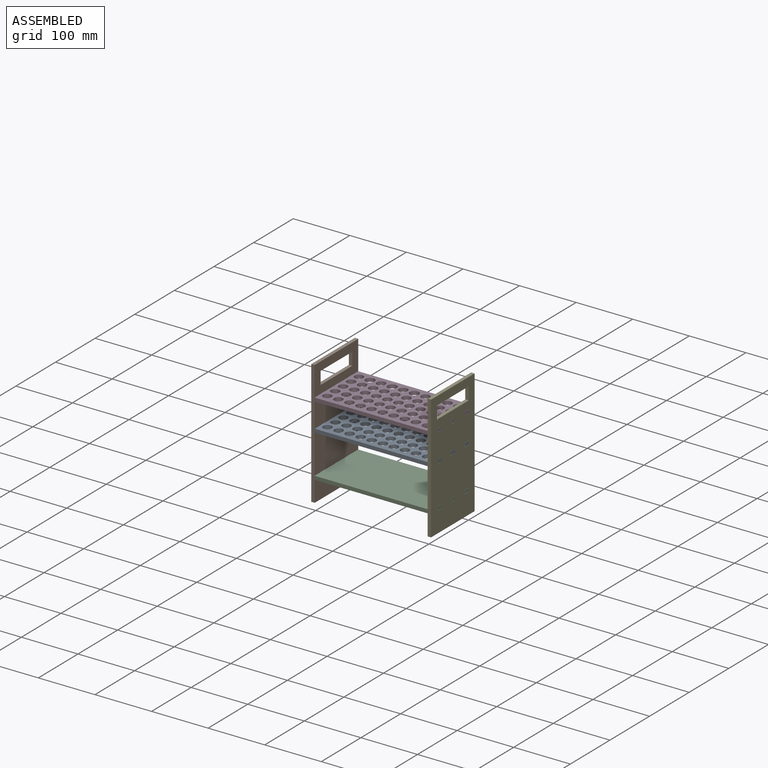
[diagram: assembled view]
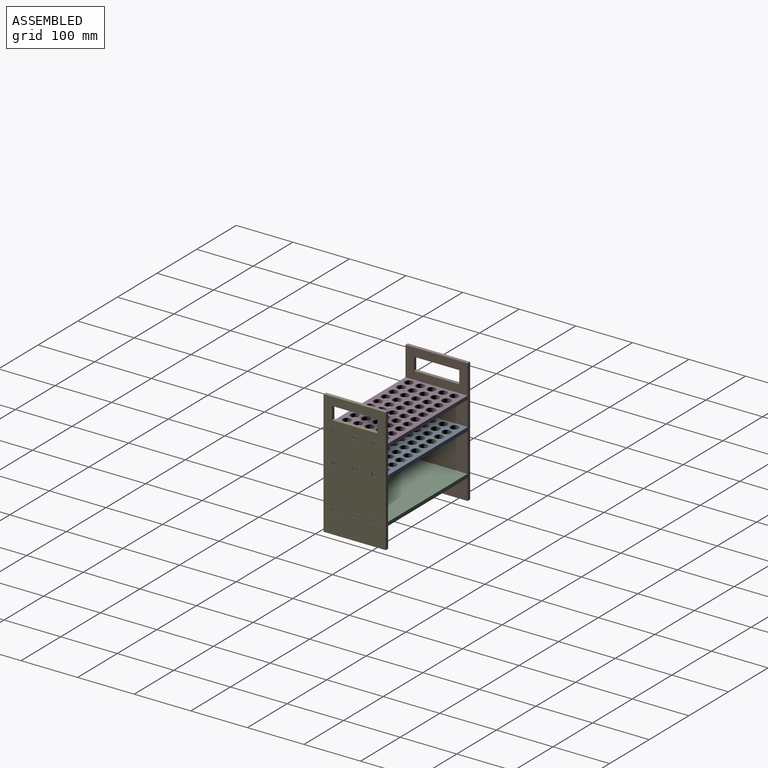
[diagram: assembled view, second angle]
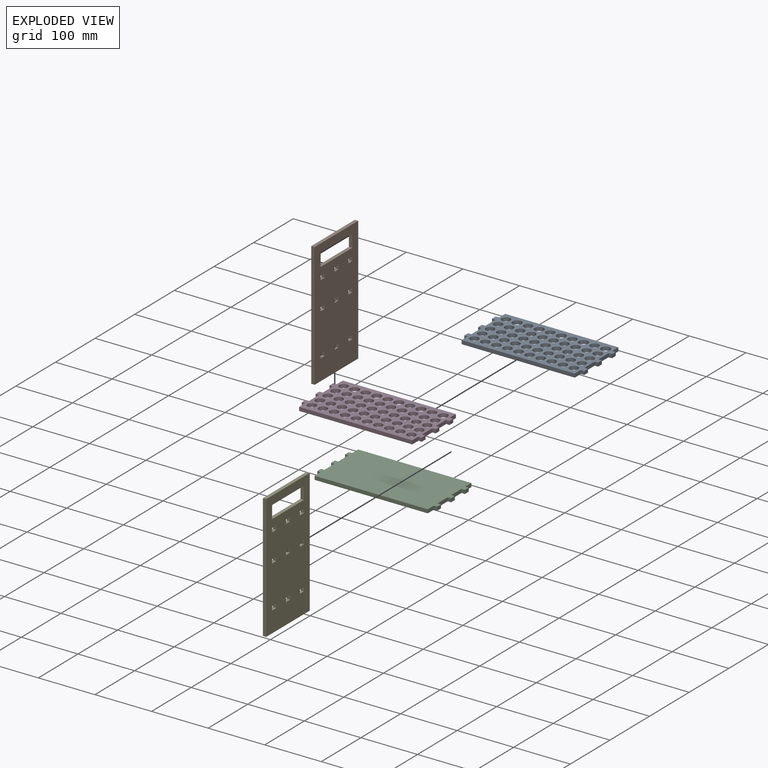
[diagram: exploded view]
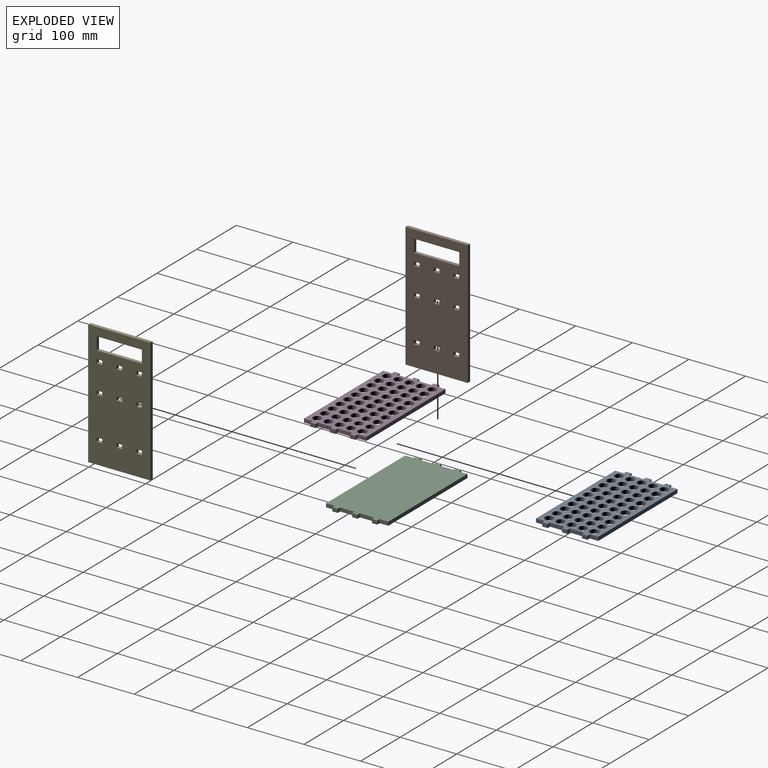
[diagram: exploded view, second angle]
ASSEMBLY  parts=5 mates=4
PART A: 80 faces, bbox 212x110x6.5 mm
  f0: plane 212x110mm, normal (0,0,1), area 13387.1mm2, adj f2,f3,f4,f5,f6,f7,f8,f9
  f1: plane 212x110mm, normal (0,0,-1), area 13387.1mm2, adj f2,f3,f4,f5,f6,f7,f8,f9
  f2: plane 15.25x6.5mm, normal (1,0,0), area 99.1mm2, adj f0,f1,f8,f27
  f3: plane 25.5x6.5mm, normal (1,0,0), area 165.7mm2, adj f0,f1,f25,f28
  f4: plane 25.5x6.5mm, normal (1,0,0), area 165.7mm2, adj f0,f1,f21,f24
  f5: plane 25.5x6.5mm, normal (-1,0,0), area 165.7mm2, adj f0,f1,f16,f19
  f6: plane 25.5x6.5mm, normal (-1,0,0), area 165.7mm2, adj f0,f1,f12,f15
  f7: plane 15.25x6.5mm, normal (-1,0,0), area 99.1mm2, adj f0,f1,f8,f13
  f8: plane 200x6.5mm, normal (0,1,0), area 1300mm2, adj f0,f1,f2,f7
  f9: plane 15.25x6.5mm, normal (-1,0,0), area 99.1mm2, adj f0,f1,f10,f18
  f10: plane 200x6.5mm, normal (0,-1,0), area 1300mm2, adj f0,f1,f9,f11
  f11: plane 15.25x6.5mm, normal (1,0,0), area 99.1mm2, adj f0,f1,f10,f22
  f12: plane 6.5x6mm, normal (0,-1,0), area 39mm2, adj f0,f1,f6,f14
  f13: plane 6.5x6mm, normal (0,1,0), area 39mm2, adj f0,f1,f7,f14
  f14: plane 9.5x6.5mm, normal (-1,0,0), area 61.8mm2, adj f0,f1,f12,f13
  f15: plane 6.5x6mm, normal (0,1,0), area 39mm2, adj f0,f1,f6,f17
  f16: plane 6.5x6mm, normal (0,-1,0), area 39mm2, adj f0,f1,f5,f17
  f17: plane 9.5x6.5mm, normal (-1,0,0), area 61.8mm2, adj f0,f1,f15,f16
  f18: plane 6.5x6mm, normal (0,-1,0), area 39mm2, adj f0,f1,f9,f20
  f19: plane 6.5x6mm, normal (0,1,0), area 39mm2, adj f0,f1,f5,f20
  f20: plane 9.5x6.5mm, normal (-1,0,0), area 61.8mm2, adj f0,f1,f18,f19
  f21: plane 6.5x6mm, normal (0,1,0), area 39mm2, adj f0,f1,f4,f23
  f22: plane 6.5x6mm, normal (0,-1,0), area 39mm2, adj f0,f1,f11,f23
  f23: plane 9.5x6.5mm, normal (1,0,0), area 61.8mm2, adj f0,f1,f21,f22
  f24: plane 6.5x6mm, normal (0,-1,0), area 39mm2, adj f0,f1,f4,f26
  f25: plane 6.5x6mm, normal (0,1,0), area 39mm2, adj f0,f1,f3,f26
  f26: plane 9.5x6.5mm, normal (1,0,0), area 61.8mm2, adj f0,f1,f24,f25
  f27: plane 6.5x6mm, normal (0,1,0), area 39mm2, adj f0,f1,f2,f29
  f28: plane 6.5x6mm, normal (0,-1,0), area 39mm2, adj f0,f1,f3,f29
  f29: plane 9.5x6.5mm, normal (1,0,0), area 61.8mm2, adj f0,f1,f27,f28
  f30: cylinder r=7.5mm len=15mm, axis (0,0,1), area 306.3mm2, adj f0,f1
  f31: cylinder r=7.5mm len=15mm, axis (0,0,1), area 306.3mm2, adj f0,f1
  f32: cylinder r=7.5mm len=15mm, axis (0,0,1), area 306.3mm2, adj f0,f1
  f33: cylinder r=7.5mm len=15mm, axis (0,0,1), area 306.3mm2, adj f0,f1
  f34: cylinder r=7.5mm len=15mm, axis (0,0,1), area 306.3mm2, adj f0,f1
  f35: cylinder r=7.5mm len=15mm, axis (0,0,1), area 306.3mm2, adj f0,f1
  f36: cylinder r=7.5mm len=15mm, axis (0,0,1), area 306.3mm2, adj f0,f1
  f37: cylinder r=7.5mm len=15mm, axis (0,0,1), area 306.3mm2, adj f0,f1
  f38: cylinder r=7.5mm len=15mm, axis (0,0,1), area 306.3mm2, adj f0,f1
  f39: cylinder r=7.5mm len=15mm, axis (0,0,1), area 306.3mm2, adj f0,f1
  f40: cylinder r=7.5mm len=15mm, axis (0,0,1), area 306.3mm2, adj f0,f1
  f41: cylinder r=7.5mm len=15mm, axis (0,0,1), area 306.3mm2, adj f0,f1
  f42: cylinder r=7.5mm len=15mm, axis (0,0,1), area 306.3mm2, adj f0,f1
  f43: cylinder r=7.5mm len=15mm, axis (0,0,1), area 306.3mm2, adj f0,f1
  f44: cylinder r=7.5mm len=15mm, axis (0,0,1), area 306.3mm2, adj f0,f1
  f45: cylinder r=7.5mm len=15mm, axis (0,0,1), area 306.3mm2, adj f0,f1
  f46: cylinder r=7.5mm len=15mm, axis (0,0,1), area 306.3mm2, adj f0,f1
  f47: cylinder r=7.5mm len=15mm, axis (0,0,1), area 306.3mm2, adj f0,f1
  f48: cylinder r=7.5mm len=15mm, axis (0,0,1), area 306.3mm2, adj f0,f1
  f49: cylinder r=7.5mm len=15mm, axis (0,0,1), area 306.3mm2, adj f0,f1
  f50: cylinder r=7.5mm len=15mm, axis (0,0,1), area 306.3mm2, adj f0,f1
  f51: cylinder r=7.5mm len=15mm, axis (0,0,1), area 306.3mm2, adj f0,f1
  f52: cylinder r=7.5mm len=15mm, axis (0,0,1), area 306.3mm2, adj f0,f1
  f53: cylinder r=7.5mm len=15mm, axis (0,0,1), area 306.3mm2, adj f0,f1
  f54: cylinder r=7.5mm len=15mm, axis (0,0,1), area 306.3mm2, adj f0,f1
  f55: cylinder r=7.99mm len=15.98mm, axis (0,0,1), area 326.3mm2, adj f0,f1
  f56: cylinder r=7.5mm len=15mm, axis (0,0,1), area 306.3mm2, adj f0,f1
  f57: cylinder r=7.99mm len=15.98mm, axis (0,0,1), area 326.3mm2, adj f0,f1
  f58: cylinder r=7.5mm len=15mm, axis (0,0,1), area 306.3mm2, adj f0,f1
  f59: cylinder r=7.99mm len=15.98mm, axis (0,0,1), area 326.3mm2, adj f0,f1
  f60: cylinder r=7.5mm len=15mm, axis (0,0,1), area 306.3mm2, adj f0,f1
  f61: cylinder r=7.99mm len=15.98mm, axis (0,0,1), area 326.3mm2, adj f0,f1
  f62: cylinder r=7.5mm len=15mm, axis (0,0,1), area 306.3mm2, adj f0,f1
  f63: cylinder r=7.99mm len=15.98mm, axis (0,0,1), area 326.3mm2, adj f0,f1
  f64: cylinder r=7.5mm len=15mm, axis (0,0,1), area 306.3mm2, adj f0,f1
  f65: cylinder r=7.5mm len=15mm, axis (0,0,1), area 306.3mm2, adj f0,f1
  f66: cylinder r=7.5mm len=15mm, axis (0,0,1), area 306.3mm2, adj f0,f1
  f67: cylinder r=7.5mm len=15mm, axis (0,0,1), area 306.3mm2, adj f0,f1
  f68: cylinder r=7.5mm len=15mm, axis (0,0,1), area 306.3mm2, adj f0,f1
  f69: cylinder r=7.5mm len=15mm, axis (0,0,1), area 306.3mm2, adj f0,f1
  f70: cylinder r=7.5mm len=15mm, axis (0,0,1), area 306.3mm2, adj f0,f1
  f71: cylinder r=7.5mm len=15mm, axis (0,0,1), area 306.3mm2, adj f0,f1
  f72: cylinder r=7.5mm len=15mm, axis (0,0,1), area 306.3mm2, adj f0,f1
  f73: cylinder r=7.5mm len=15mm, axis (0,0,1), area 306.3mm2, adj f0,f1
  f74: cylinder r=7.5mm len=15mm, axis (0,0,1), area 306.3mm2, adj f0,f1
  f75: cylinder r=7.5mm len=15mm, axis (0,0,1), area 306.3mm2, adj f0,f1
  f76: cylinder r=7.5mm len=15mm, axis (0,0,1), area 306.3mm2, adj f0,f1
  f77: cylinder r=7.5mm len=15mm, axis (0,0,1), area 306.3mm2, adj f0,f1
  f78: cylinder r=7.5mm len=15mm, axis (0,0,1), area 306.3mm2, adj f0,f1
  f79: cylinder r=7.5mm len=15mm, axis (0,0,1), area 306.3mm2, adj f0,f1
PART B: 46 faces, bbox 6x110x220 mm
  f0: plane 7x6mm, normal (0,-1,0), area 42mm2, adj f1,f43,f44,f45
  f1: plane 10x6mm, normal (0,0,1), area 60mm2, adj f0,f2,f44,f45
  f2: plane 7x6mm, normal (0,1,0), area 42mm2, adj f1,f43,f44,f45
  f3: plane 7x6mm, normal (0,-1,0), area 42mm2, adj f4,f33,f44,f45
  f4: plane 10x6mm, normal (0,0,1), area 60mm2, adj f3,f5,f44,f45
  f5: plane 7x6mm, normal (0,1,0), area 42mm2, adj f4,f33,f44,f45
  f6: plane 7x6mm, normal (0,-1,0), area 42mm2, adj f7,f34,f44,f45
  f7: plane 10x6mm, normal (0,0,1), area 60mm2, adj f6,f8,f44,f45
  f8: plane 7x6mm, normal (0,1,0), area 42mm2, adj f7,f34,f44,f45
  f9: plane 7x6mm, normal (0,1,0), area 42mm2, adj f10,f35,f44,f45
  f10: plane 10x6mm, normal (0,0,-1), area 60mm2, adj f9,f11,f44,f45
  f11: plane 7x6mm, normal (0,-1,0), area 42mm2, adj f10,f35,f44,f45
  f12: plane 7x6mm, normal (0,1,0), area 42mm2, adj f13,f36,f44,f45
  f13: plane 10x6mm, normal (0,0,-1), area 60mm2, adj f12,f14,f44,f45
  f14: plane 7x6mm, normal (0,-1,0), area 42mm2, adj f13,f36,f44,f45
  f15: plane 7x6mm, normal (0,1,0), area 42mm2, adj f16,f37,f44,f45
  f16: plane 10x6mm, normal (0,0,-1), area 60mm2, adj f15,f17,f44,f45
  f17: plane 7x6mm, normal (0,-1,0), area 42mm2, adj f16,f37,f44,f45
  f18: plane 7x6mm, normal (0,1,0), area 42mm2, adj f19,f38,f44,f45
  f19: plane 10x6mm, normal (0,0,-1), area 60mm2, adj f18,f20,f44,f45
  f20: plane 7x6mm, normal (0,-1,0), area 42mm2, adj f19,f38,f44,f45
  f21: plane 7x6mm, normal (0,1,0), area 42mm2, adj f22,f39,f44,f45
  f22: plane 10x6mm, normal (0,0,-1), area 60mm2, adj f21,f23,f44,f45
  f23: plane 7x6mm, normal (0,-1,0), area 42mm2, adj f22,f39,f44,f45
  f24: plane 7x6mm, normal (0,1,0), area 42mm2, adj f25,f40,f44,f45
  f25: plane 10x6mm, normal (0,0,-1), area 60mm2, adj f24,f26,f44,f45
  f26: plane 7x6mm, normal (0,-1,0), area 42mm2, adj f25,f40,f44,f45
  f27: plane 110x6mm, normal (0,0,1), area 660mm2, adj f28,f41,f44,f45
  f28: plane 220x6mm, normal (0,-1,0), area 1320mm2, adj f27,f29,f44,f45
  f29: plane 110x6mm, normal (0,0,-1), area 660mm2, adj f28,f41,f44,f45
  f30: plane 80x6mm, normal (0,0,1), area 480mm2, adj f31,f42,f44,f45
  f31: plane 22.5x6mm, normal (0,1,0), area 135mm2, adj f30,f32,f44,f45
  f32: plane 80x6mm, normal (0,0,-1), area 480mm2, adj f31,f42,f44,f45
  f33: plane 10x6mm, normal (0,0,-1), area 60mm2, adj f3,f5,f44,f45
  f34: plane 10x6mm, normal (0,0,-1), area 60mm2, adj f6,f8,f44,f45
  f35: plane 10x6mm, normal (0,0,1), area 60mm2, adj f9,f11,f44,f45
  f36: plane 10x6mm, normal (0,0,1), area 60mm2, adj f12,f14,f44,f45
  f37: plane 10x6mm, normal (0,0,1), area 60mm2, adj f15,f17,f44,f45
  f38: plane 10x6mm, normal (0,0,1), area 60mm2, adj f18,f20,f44,f45
  f39: plane 10x6mm, normal (0,0,1), area 60mm2, adj f21,f23,f44,f45
  f40: plane 10x6mm, normal (0,0,1), area 60mm2, adj f24,f26,f44,f45
  f41: plane 220x6mm, normal (0,1,0), area 1320mm2, adj f27,f29,f44,f45
  f42: plane 22.5x6mm, normal (0,-1,0), area 135mm2, adj f30,f32,f44,f45
  f43: plane 10x6mm, normal (0,0,-1), area 60mm2, adj f0,f2,f44,f45
  f44: plane 220x110mm, normal (1,0,0), area 21770mm2, adj f0,f1,f2,f3,f4,f5,f6,f7
  f45: plane 220x110mm, normal (-1,0,0), area 21770mm2, adj f0,f1,f2,f3,f4,f5,f6,f7
PART C: 30 faces, bbox 212x110x6.5 mm
  f0: plane 15.25x6.5mm, normal (1,0,0), area 99.1mm2, adj f6,f10,f11,f27
  f1: plane 25.5x6.5mm, normal (1,0,0), area 165.7mm2, adj f10,f11,f25,f28
  f2: plane 25.5x6.5mm, normal (1,0,0), area 165.7mm2, adj f10,f11,f21,f24
  f3: plane 25.5x6.5mm, normal (-1,0,0), area 165.7mm2, adj f10,f11,f16,f19
  f4: plane 25.5x6.5mm, normal (-1,0,0), area 165.7mm2, adj f10,f11,f12,f15
  f5: plane 15.25x6.5mm, normal (-1,0,0), area 99.1mm2, adj f6,f10,f11,f13
  f6: plane 200x6.5mm, normal (0,1,0), area 1300mm2, adj f0,f5,f10,f11
  f7: plane 15.25x6.5mm, normal (-1,0,0), area 99.1mm2, adj f8,f10,f11,f18
  f8: plane 200x6.5mm, normal (0,-1,0), area 1300mm2, adj f7,f9,f10,f11
  f9: plane 15.25x6.5mm, normal (1,0,0), area 99.1mm2, adj f8,f10,f11,f22
  f10: plane 212x110mm, normal (0,0,1), area 22342mm2, adj f0,f1,f2,f3,f4,f5,f6,f7
  f11: plane 212x110mm, normal (0,0,-1), area 22342mm2, adj f0,f1,f2,f3,f4,f5,f6,f7
  f12: plane 6.5x6mm, normal (0,-1,0), area 39mm2, adj f4,f10,f11,f14
  f13: plane 6.5x6mm, normal (0,1,0), area 39mm2, adj f5,f10,f11,f14
  f14: plane 9.5x6.5mm, normal (-1,0,0), area 61.8mm2, adj f10,f11,f12,f13
  f15: plane 6.5x6mm, normal (0,1,0), area 39mm2, adj f4,f10,f11,f17
  f16: plane 6.5x6mm, normal (0,-1,0), area 39mm2, adj f3,f10,f11,f17
  f17: plane 9.5x6.5mm, normal (-1,0,0), area 61.8mm2, adj f10,f11,f15,f16
  f18: plane 6.5x6mm, normal (0,-1,0), area 39mm2, adj f7,f10,f11,f20
  f19: plane 6.5x6mm, normal (0,1,0), area 39mm2, adj f3,f10,f11,f20
  f20: plane 9.5x6.5mm, normal (-1,0,0), area 61.8mm2, adj f10,f11,f18,f19
  f21: plane 6.5x6mm, normal (0,1,0), area 39mm2, adj f2,f10,f11,f23
  f22: plane 6.5x6mm, normal (0,-1,0), area 39mm2, adj f9,f10,f11,f23
  f23: plane 9.5x6.5mm, normal (1,0,0), area 61.8mm2, adj f10,f11,f21,f22
  f24: plane 6.5x6mm, normal (0,-1,0), area 39mm2, adj f2,f10,f11,f26
  f25: plane 6.5x6mm, normal (0,1,0), area 39mm2, adj f1,f10,f11,f26
  f26: plane 9.5x6.5mm, normal (1,0,0), area 61.8mm2, adj f10,f11,f24,f25
  f27: plane 6.5x6mm, normal (0,1,0), area 39mm2, adj f0,f10,f11,f29
  f28: plane 6.5x6mm, normal (0,-1,0), area 39mm2, adj f1,f10,f11,f29
  f29: plane 9.5x6.5mm, normal (1,0,0), area 61.8mm2, adj f10,f11,f27,f28
PART D: same geometry as A
PART E: same geometry as B
PLACE A t=(-10.23,-32.71,50.37)mm
PLACE B t=(-116.23,-40.46,1.41)mm
PLACE C t=(-10.23,-33.21,-24.63)mm
PLACE D t=(-10.23,-33.21,100.37)mm
PLACE E t=(89.77,-40.96,1.41)mm
MATE fastened A.f19 <-> B.f6  axis (0,1,0) through (-113.23,-62.96,53.62)mm
MATE fastened E.f26 <-> C.f27  axis (0,-1,0) through (92.77,6.54,-21.38)mm
MATE fastened C.f18 <-> B.f2  axis (0,-1,0) through (-113.23,-72.96,-21.38)mm
MATE fastened D.f18 <-> B.f5  axis (0,-1,0) through (-113.23,-72.96,103.62)mm
